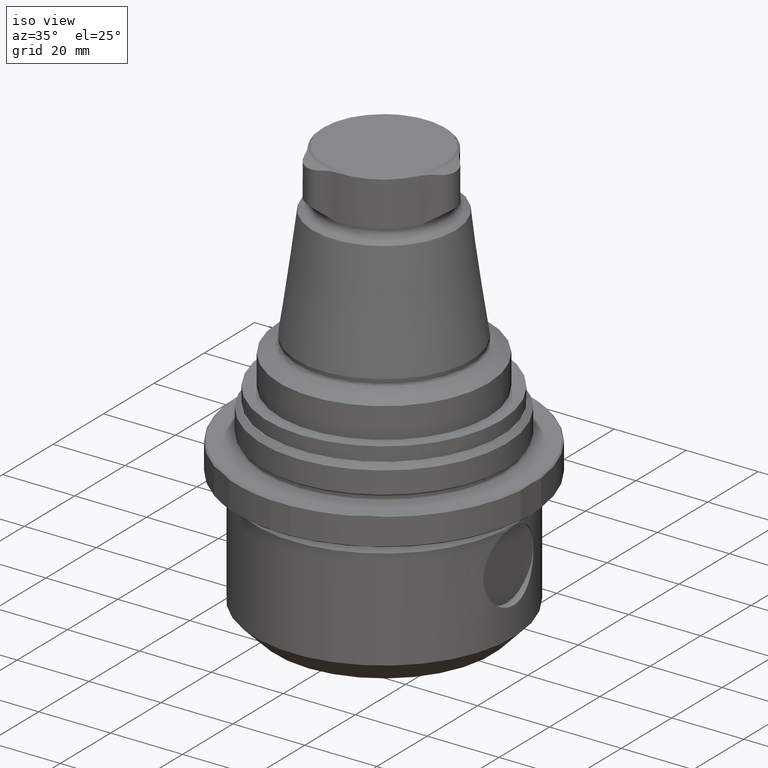
[diagram: clean part render]
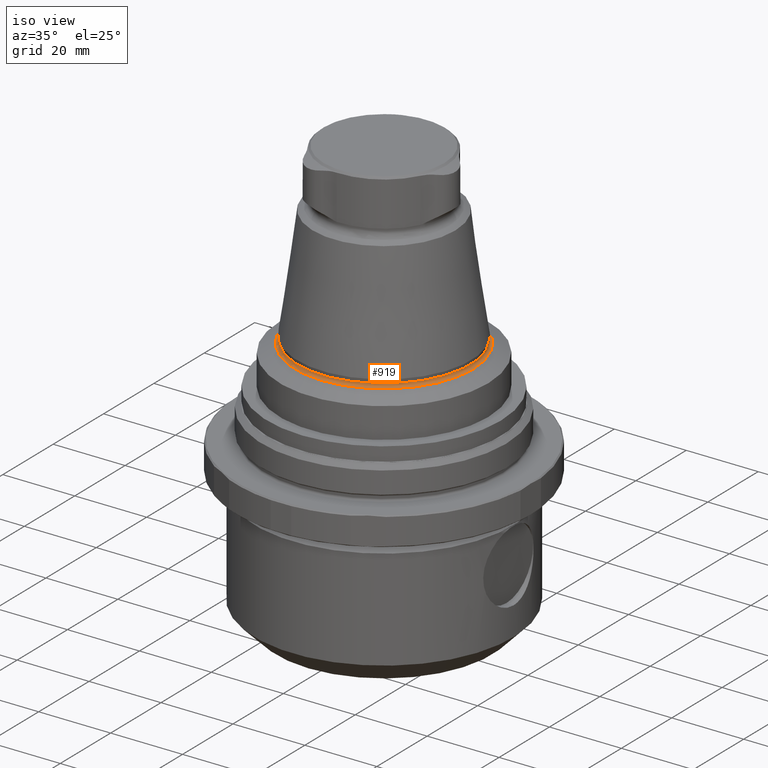
[diagram: same view with one face highlighted and labeled with its STEP entity id]
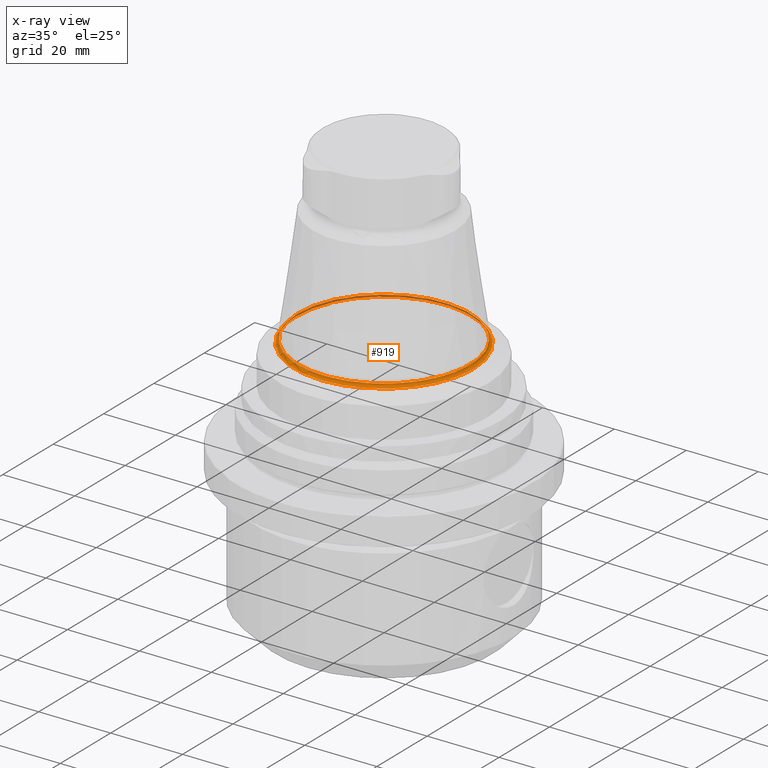
[diagram: x-ray of the same camera — body ghosted, the highlighted face saturated]
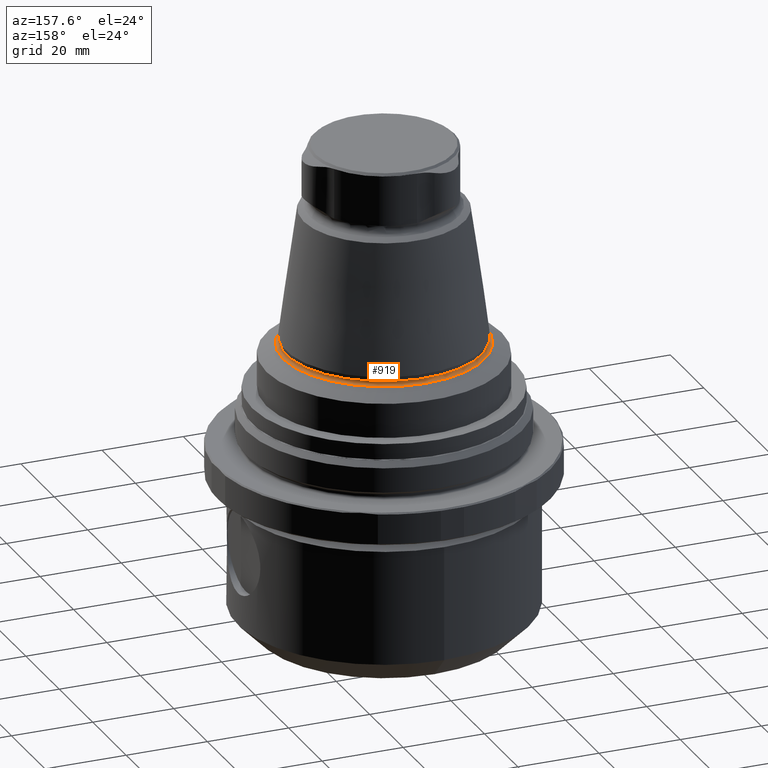
[diagram: same view with one face highlighted and labeled with its STEP entity id]
A machine part, iso view. The second image highlights one B-rep face of the part: STEP entity #919.
The next image is the same camera in x-ray: the body ghosted, the highlighted face saturated — about 23% of this face is hidden behind the body in this view.
A second angle (auxiliary view) of the same face is appended — the face is thin or edge-on in the first view.
In plain terms, the highlighted toroidal blend (fillet) surface has major radius 24.8 mm and minor (blend) radius 0.8 mm.
Its self-contained STEP definition (entity closure, byte-faithful):
#21=TOROIDAL_SURFACE('',#1014,24.8,0.8);
#129=CIRCLE('',#1013,24.0121537975902);
#130=CIRCLE('',#1015,24.8);
#272=ORIENTED_EDGE('',*,*,#469,.T.);
#273=ORIENTED_EDGE('',*,*,#470,.F.);
#469=EDGE_CURVE('',#578,#578,#129,.T.);
#470=EDGE_CURVE('',#579,#579,#130,.T.);
#578=VERTEX_POINT('',#1611);
#579=VERTEX_POINT('',#1614);
#706=EDGE_LOOP('',(#272));
#707=EDGE_LOOP('',(#273));
#803=FACE_BOUND('',#706,.T.);
#804=FACE_BOUND('',#707,.T.);
#919=ADVANCED_FACE('',(#803,#804),#21,.F.);
#1013=AXIS2_PLACEMENT_3D('',#1610,#1185,#1186);
#1014=AXIS2_PLACEMENT_3D('',#1612,#1187,#1188);
#1015=AXIS2_PLACEMENT_3D('',#1613,#1189,#1190);
#1185=DIRECTION('',(1.22461692971323E-16,2.24951050968791E-32,-1.));
#1186=DIRECTION('',(-1.,-1.83690953073357E-16,-1.22461692971323E-16));
#1187=DIRECTION('',(1.22461692971323E-16,2.24951050968791E-32,-1.));
#1188=DIRECTION('',(-1.,-1.83690953073357E-16,-1.22461692971323E-16));
#1189=DIRECTION('',(1.22461692971323E-16,2.24951050968791E-32,-1.));
#1190=DIRECTION('',(-1.,-1.83690953073357E-16,-1.22461692971323E-16));
#1610=CARTESIAN_POINT('',(5.96453016039818E-15,1.09563022979832E-30,24.2956915959715));
#1611=CARTESIAN_POINT('',(-24.0121537975902,-4.41081541642337E-15,24.2956915959715));
#1612=CARTESIAN_POINT('',(6.93889390390723E-15,1.27461203448362E-30,24.1567730538379));
#1613=CARTESIAN_POINT('',(6.07951171463002E-15,1.11675130108102E-30,23.3567730538379));
#1614=CARTESIAN_POINT('',(-24.8,-4.55553563621924E-15,23.3567730538379));